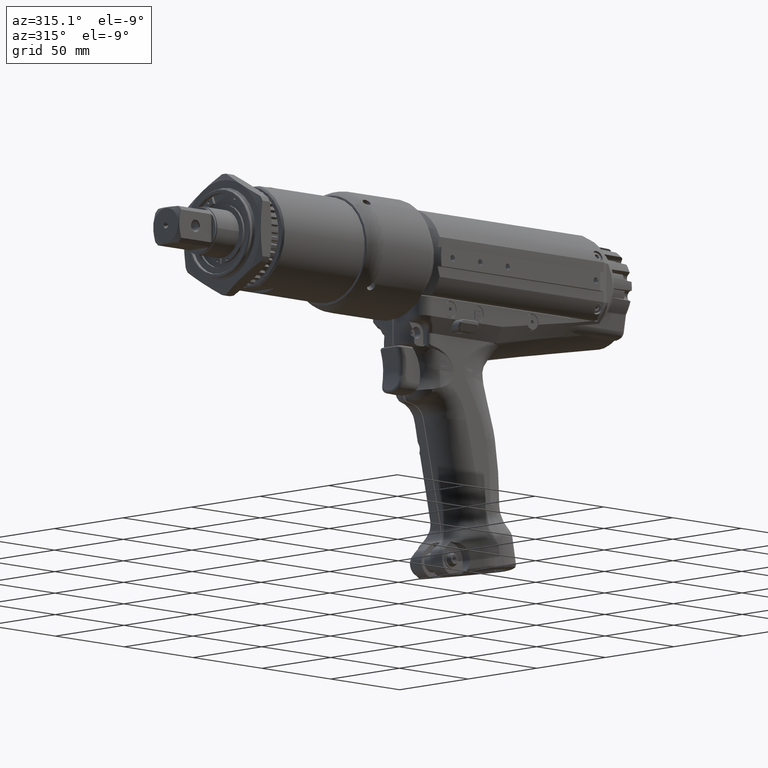
[diagram: clean part render]
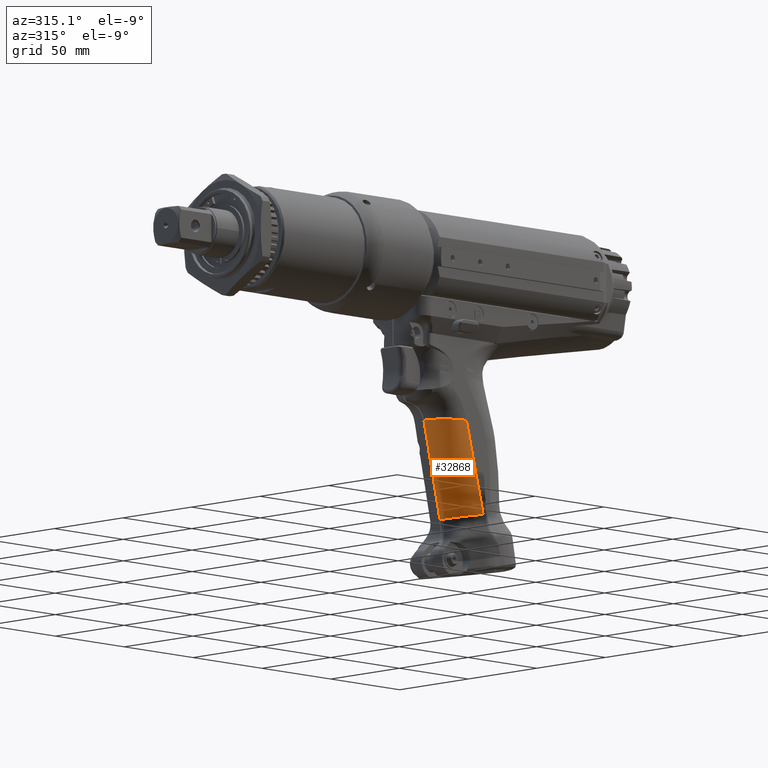
[diagram: same view with one face highlighted and labeled with its STEP entity id]
A machine part, auxiliary view. The second image highlights one B-rep face of the part: STEP entity #32868.
In plain terms, the highlighted face is a freeform B-spline surface patch.
Its self-contained STEP definition (entity closure, byte-faithful):
#2025=LINE('',#57216,#4008);
#4008=VECTOR('',#39238,10.);
#6563=FACE_OUTER_BOUND('',#8385,.T.);
#8385=EDGE_LOOP('',(#22858,#22859,#22860,#22861,#22862));
#11582=B_SPLINE_CURVE_WITH_KNOTS('',3,(#55046,#55047,#55048,#55049,#55050,
#55051,#55052,#55053,#55054,#55055),.UNSPECIFIED.,.F.,.F.,(4,3,3,4),(-6.48301901123684,
-4.86226425828379,-3.24150950533072,0.),.UNSPECIFIED.);
#11661=B_SPLINE_CURVE_WITH_KNOTS('',3,(#59744,#59745,#59746,#59747,#59748,
#59749,#59750,#59751,#59752,#59753,#59754,#59755,#59756,#59757,#59758,#59759,
#59760,#59761,#59762,#59763,#59764,#59765,#59766,#59767,#59768,#59769,#59770,
#59771,#59772,#59773,#59774),.UNSPECIFIED.,.F.,.F.,(4,3,3,3,3,3,3,3,3,3,
4),(-19.4136932267682,-16.9869815734223,-14.5602699200763,-13.3469140934034,
-12.1335582667304,-9.7068466133845,-7.28013496003857,-6.06677913336561,
-4.85342330669265,-2.42671165334672,-0.310536262625408),.UNSPECIFIED.);
#11672=B_SPLINE_CURVE_WITH_KNOTS('',3,(#61028,#61029,#61030,#61031,#61032,
#61033,#61034,#61035,#61036,#61037,#61038,#61039,#61040,#61041,#61042,#61043,
#61044,#61045,#61046,#61047,#61048,#61049,#61050,#61051,#61052,#61053,#61054,
#61055),.UNSPECIFIED.,.F.,.F.,(4,3,3,3,3,3,3,3,3,4),(-23.9684616606429,
-21.2322941278046,-19.715701690104,-18.1991092524035,-15.1659243770024,
-12.1327395016012,-9.09955462620011,-6.06636975079899,-3.03318487539785,
0.),.UNSPECIFIED.);
#11676=B_SPLINE_CURVE_WITH_KNOTS('',3,(#61575,#61576,#61577,#61578,#61579,
#61580,#61581),.UNSPECIFIED.,.F.,.F.,(4,3,4),(-51.8323816279323,-8.32192835508896,
-0.015886336177395),.UNSPECIFIED.);
#13297=VERTEX_POINT('',#54851);
#13305=VERTEX_POINT('',#55045);
#13348=VERTEX_POINT('',#57154);
#13376=VERTEX_POINT('',#59743);
#13388=VERTEX_POINT('',#61021);
#16883=EDGE_CURVE('',#13297,#13305,#11582,.T.);
#16947=EDGE_CURVE('',#13348,#13297,#2025,.T.);
#16994=EDGE_CURVE('',#13305,#13376,#11661,.T.);
#17015=EDGE_CURVE('',#13388,#13348,#11672,.T.);
#17019=EDGE_CURVE('',#13388,#13376,#11676,.T.);
#22858=ORIENTED_EDGE('',*,*,#17019,.T.);
#22859=ORIENTED_EDGE('',*,*,#16994,.F.);
#22860=ORIENTED_EDGE('',*,*,#16883,.F.);
#22861=ORIENTED_EDGE('',*,*,#16947,.F.);
#22862=ORIENTED_EDGE('',*,*,#17015,.F.);
#30535=B_SPLINE_SURFACE_WITH_KNOTS('',3,3,((#61535,#61536,#61537,#61538,
#61539,#61540,#61541,#61542,#61543,#61544),(#61545,#61546,#61547,#61548,
#61549,#61550,#61551,#61552,#61553,#61554),(#61555,#61556,#61557,#61558,
#61559,#61560,#61561,#61562,#61563,#61564),(#61565,#61566,#61567,#61568,
#61569,#61570,#61571,#61572,#61573,#61574)),.UNSPECIFIED.,.F.,.F.,.F.,(4,
4),(4,1,1,1,1,1,1,4),(6.18932721384576,59.3048513845876),(0.,1.,2.,3.,4.,
5.,6.,6.98580711094933),.UNSPECIFIED.);
#32868=ADVANCED_FACE('',(#6563),#30535,.F.);
#39238=DIRECTION('',(0.238202072095024,-0.0105560679108481,-0.971158247805114));
#54851=CARTESIAN_POINT('',(45.5678392086194,-15.9825582871778,-128.395362420582));
#55045=CARTESIAN_POINT('',(39.4207447537838,-14.7580043873872,-129.479388351292));
#55046=CARTESIAN_POINT('Ctrl Pts',(45.5678392086194,-15.982558287175,-128.395362420582));
#55047=CARTESIAN_POINT('Ctrl Pts',(45.0423176531497,-15.9836179425201,-128.48802604962));
#55048=CARTESIAN_POINT('Ctrl Pts',(44.5167569967792,-15.9593946880317,-128.580704521699));
#55049=CARTESIAN_POINT('Ctrl Pts',(43.9935237577396,-15.9097596218973,-128.672976584782));
#55050=CARTESIAN_POINT('Ctrl Pts',(43.4702905187,-15.860124555763,-128.765248647864));
#55051=CARTESIAN_POINT('Ctrl Pts',(42.9493825694194,-15.7849338151476,-128.857114679171));
#55052=CARTESIAN_POINT('Ctrl Pts',(42.4334432201096,-15.683524476737,-128.948104616164));
#55053=CARTESIAN_POINT('Ctrl Pts',(41.4015645216732,-15.4807057999517,-129.130084490118));
#55054=CARTESIAN_POINT('Ctrl Pts',(40.3902653576892,-15.1700841761263,-129.308435671873));
#55055=CARTESIAN_POINT('Ctrl Pts',(39.4207447539561,-14.7580043874603,-129.479388351262));
#57154=CARTESIAN_POINT('',(33.865236035306,-15.4639503978983,-80.6834366065204));
#57216=CARTESIAN_POINT('',(33.865236035306,-15.4639503978983,-80.6834366065204));
#59743=CARTESIAN_POINT('',(29.8188833644006,-0.299999986565734,-131.172330684969));
#59744=CARTESIAN_POINT('Ctrl Pts',(39.4207447534393,-14.7580043872409,-129.479388351351));
#59745=CARTESIAN_POINT('Ctrl Pts',(38.710704199284,-14.4564132780039,-129.604583011414));
#59746=CARTESIAN_POINT('Ctrl Pts',(38.0227957010012,-14.1010899634868,-129.725874959367));
#59747=CARTESIAN_POINT('Ctrl Pts',(37.3641988421852,-13.6966438285991,-129.841998297377));
#59748=CARTESIAN_POINT('Ctrl Pts',(36.7056019833691,-13.2921976937114,-129.958121635387));
#59749=CARTESIAN_POINT('Ctrl Pts',(36.0761901649655,-12.8387343871393,-130.069098686406));
#59750=CARTESIAN_POINT('Ctrl Pts',(35.4835481221014,-12.3399946881339,-130.173592109945));
#59751=CARTESIAN_POINT('Ctrl Pts',(35.1872271006694,-12.0906248386312,-130.225838821715));
#59752=CARTESIAN_POINT('Ctrl Pts',(34.9000542562522,-11.8301928924038,-130.276472433429));
#59753=CARTESIAN_POINT('Ctrl Pts',(34.622739186844,-11.5592106494205,-130.325367829726));
#59754=CARTESIAN_POINT('Ctrl Pts',(34.3454241174359,-11.2882284064371,-130.374263226023));
#59755=CARTESIAN_POINT('Ctrl Pts',(34.0779421395391,-11.0069441553659,-130.421424760657));
#59756=CARTESIAN_POINT('Ctrl Pts',(33.8210327100878,-10.7159982363613,-130.466722054396));
#59757=CARTESIAN_POINT('Ctrl Pts',(33.3072138511854,-10.134106398352,-130.557316641874));
#59758=CARTESIAN_POINT('Ctrl Pts',(32.8360190317774,-9.51346485173856,-130.640395400639));
#59759=CARTESIAN_POINT('Ctrl Pts',(32.4123072959021,-8.86098497463115,-130.715101611402));
#59760=CARTESIAN_POINT('Ctrl Pts',(31.9885955600267,-8.20850509752373,-130.789807822164));
#59761=CARTESIAN_POINT('Ctrl Pts',(31.6122182445918,-7.52440136805803,-130.856167698885));
#59762=CARTESIAN_POINT('Ctrl Pts',(31.2870864031662,-6.81598706661476,-130.913491676911));
#59763=CARTESIAN_POINT('Ctrl Pts',(31.1245204824535,-6.46177991589313,-130.942153665924));
#59764=CARTESIAN_POINT('Ctrl Pts',(30.9747907929411,-6.10157030157646,-130.968552296869));
#59765=CARTESIAN_POINT('Ctrl Pts',(30.838267466811,-5.73618978403979,-130.992622311816));
#59766=CARTESIAN_POINT('Ctrl Pts',(30.7017441406808,-5.37080926650313,-131.016692326763));
#59767=CARTESIAN_POINT('Ctrl Pts',(30.5785405804144,-5.00032794004964,-131.038413730641));
#59768=CARTESIAN_POINT('Ctrl Pts',(30.4689447140225,-4.62576113898585,-131.057735761122));
#59769=CARTESIAN_POINT('Ctrl Pts',(30.2497529812386,-3.87662753685827,-131.096379822086));
#59770=CARTESIAN_POINT('Ctrl Pts',(30.0859888018645,-3.1106772334414,-131.125250631912));
#59771=CARTESIAN_POINT('Ctrl Pts',(29.977917964721,-2.33692256675389,-131.144301380163));
#59772=CARTESIAN_POINT('Ctrl Pts',(29.8836765060367,-1.66218208745458,-131.160914282882));
#59773=CARTESIAN_POINT('Ctrl Pts',(29.8309282685647,-0.981404978026323,
-131.170210941981));
#59774=CARTESIAN_POINT('Ctrl Pts',(29.8188837248644,-0.299999973222157,
-131.17233060175));
#61021=CARTESIAN_POINT('',(18.1620621875455,-0.299999864935957,-80.6834273257871));
#61028=CARTESIAN_POINT('Ctrl Pts',(18.1620621875455,-0.299999864935957,
-80.6834273257871));
#61029=CARTESIAN_POINT('Ctrl Pts',(18.1771387497501,-1.22119265919357,-80.6834276602242));
#61030=CARTESIAN_POINT('Ctrl Pts',(18.267942099335,-2.14163923726862,-80.6834278991347));
#61031=CARTESIAN_POINT('Ctrl Pts',(18.4433397213859,-3.04619781146871,-80.6834280686937));
#61032=CARTESIAN_POINT('Ctrl Pts',(18.5405584420967,-3.54757306595322,-80.6834281626761));
#61033=CARTESIAN_POINT('Ctrl Pts',(18.6643881962567,-4.04377836317924,-80.6834282348271));
#61034=CARTESIAN_POINT('Ctrl Pts',(18.8138406663392,-4.53205493434958,-80.6834282918092));
#61035=CARTESIAN_POINT('Ctrl Pts',(18.9632931364217,-5.02033150551992,-80.6834283487912));
#61036=CARTESIAN_POINT('Ctrl Pts',(19.1381723039592,-5.50096762260655,-80.6834283911003));
#61037=CARTESIAN_POINT('Ctrl Pts',(19.3368979536065,-5.97137758340933,-80.6834284257208));
#61038=CARTESIAN_POINT('Ctrl Pts',(19.734349252901,-6.91219750501487,-80.6834284949619));
#61039=CARTESIAN_POINT('Ctrl Pts',(20.2267468032353,-7.8129690442831,-80.6834285346032));
#61040=CARTESIAN_POINT('Ctrl Pts',(20.8038890792877,-8.655663067312,-80.6834285958998));
#61041=CARTESIAN_POINT('Ctrl Pts',(21.3810313553401,-9.49835709034094,-80.6834286571963));
#61042=CARTESIAN_POINT('Ctrl Pts',(22.0438219487164,-10.2821579216293,-80.6834287396974));
#61043=CARTESIAN_POINT('Ctrl Pts',(22.7761809125763,-10.9940374471896,-80.6834288940531));
#61044=CARTESIAN_POINT('Ctrl Pts',(23.5085398764362,-11.70591697275,-80.6834290484089));
#61045=CARTESIAN_POINT('Ctrl Pts',(24.3111947217538,-12.3455356181498,-80.6834292744781));
#61046=CARTESIAN_POINT('Ctrl Pts',(25.1686340526164,-12.9005609593443,-80.6834296151551));
#61047=CARTESIAN_POINT('Ctrl Pts',(26.026073383479,-13.4555863005388,-80.6834299558322));
#61048=CARTESIAN_POINT('Ctrl Pts',(26.9367790350865,-13.9281019868943,-80.6834304122798));
#61049=CARTESIAN_POINT('Ctrl Pts',(27.8843950872285,-14.3093168097327,-80.6834310181496));
#61050=CARTESIAN_POINT('Ctrl Pts',(28.8320111393706,-14.690531632571,-80.6834316240194));
#61051=CARTESIAN_POINT('Ctrl Pts',(29.8166895116927,-14.9791245019431,-80.6834323795945));
#61052=CARTESIAN_POINT('Ctrl Pts',(30.8196845161613,-15.1719144158077,-80.6834333064904));
#61053=CARTESIAN_POINT('Ctrl Pts',(31.8226795206289,-15.364704329672,-80.6834342333863));
#61054=CARTESIAN_POINT('Ctrl Pts',(32.843856271045,-15.4637990304035,-80.6834353315417));
#61055=CARTESIAN_POINT('Ctrl Pts',(33.8652360353059,-15.4639503978983,-80.68343660652));
#61535=CARTESIAN_POINT('Ctrl Pts',(33.1320648046684,-15.4314594744025,-77.6942716449367));
#61536=CARTESIAN_POINT('Ctrl Pts',(31.9981187510583,-15.433561842498,-77.8876895097135));
#61537=CARTESIAN_POINT('Ctrl Pts',(29.7113447631244,-15.1679206120768,-78.2760355364439));
#61538=CARTESIAN_POINT('Ctrl Pts',(26.5203420210999,-14.0297554434305,-78.813549850569));
#61539=CARTESIAN_POINT('Ctrl Pts',(23.6053456448684,-12.1715831929764,-79.2996621685887));
#61540=CARTESIAN_POINT('Ctrl Pts',(21.1662113574868,-9.67013863266244,-79.7007310331562));
#61541=CARTESIAN_POINT('Ctrl Pts',(19.3769327855555,-6.72762038053961,-79.9885858677607));
#61542=CARTESIAN_POINT('Ctrl Pts',(18.272364011691,-3.47426618170769,-80.1578291050224));
#61543=CARTESIAN_POINT('Ctrl Pts',(18.0458448817121,-1.18087065599427,-80.1829956592747));
#61544=CARTESIAN_POINT('Ctrl Pts',(18.0428603286647,-0.0488880631525478,
-80.1768412995747));
#61545=CARTESIAN_POINT('Ctrl Pts',(37.4112318994405,-15.6210933346678,-95.140586789332));
#61546=CARTESIAN_POINT('Ctrl Pts',(36.2568205418976,-15.6230302236222,-95.3187805731416));
#61547=CARTESIAN_POINT('Ctrl Pts',(33.9274850111025,-15.3627156754217,-95.6716050561516));
#61548=CARTESIAN_POINT('Ctrl Pts',(30.671714144472,-14.2152537135964,-96.1481023922061));
#61549=CARTESIAN_POINT('Ctrl Pts',(27.6953767170024,-12.3369560272959,-96.5650954123668));
#61550=CARTESIAN_POINT('Ctrl Pts',(25.2009339980697,-9.80693994291994,-96.8930978409874));
#61551=CARTESIAN_POINT('Ctrl Pts',(23.3626824393949,-6.82478284514916,-97.1106655846703));
#61552=CARTESIAN_POINT('Ctrl Pts',(22.2205637231422,-3.52527511484597,-97.2139046381531));
#61553=CARTESIAN_POINT('Ctrl Pts',(21.9765346741242,-1.19849471066294,-97.2002597254631));
#61554=CARTESIAN_POINT('Ctrl Pts',(21.9675683409105,-0.0496179493162851,
-97.176276740064));
#61555=CARTESIAN_POINT('Ctrl Pts',(41.6904333988425,-15.8107287195955,-112.587042202641));
#61556=CARTESIAN_POINT('Ctrl Pts',(40.5142640781664,-15.812501568073,-112.750144262572));
#61557=CARTESIAN_POINT('Ctrl Pts',(38.1414878004364,-15.5557196069803,-113.067561297025));
#61558=CARTESIAN_POINT('Ctrl Pts',(34.8138872761112,-14.394150968327,-113.483472554788));
#61559=CARTESIAN_POINT('Ctrl Pts',(31.7807600311191,-12.4940308752059,-113.830833089394));
#61560=CARTESIAN_POINT('Ctrl Pts',(29.2410440081699,-9.94515068078324,-114.085537223452));
#61561=CARTESIAN_POINT('Ctrl Pts',(27.3501264502829,-6.92139778519232,-114.232966606496));
#61562=CARTESIAN_POINT('Ctrl Pts',(26.1709743814615,-3.57393511686102,-114.26989869948));
#61563=CARTESIAN_POINT('Ctrl Pts',(25.9057143993673,-1.21573223276545,-114.217843945491));
#61564=CARTESIAN_POINT('Ctrl Pts',(25.8922420843666,-0.0503321952918275,
-114.175856672276));
#61565=CARTESIAN_POINT('Ctrl Pts',(45.9696258000896,-16.0003637013329,-130.033460522445));
#61566=CARTESIAN_POINT('Ctrl Pts',(44.7713457230794,-16.0019712146189,-130.181351744753));
#61567=CARTESIAN_POINT('Ctrl Pts',(42.3544901735796,-15.7502254994935,-130.463600680171));
#61568=CARTESIAN_POINT('Ctrl Pts',(38.9550081777189,-14.5760126653354,-130.818662812572));
#61569=CARTESIAN_POINT('Ctrl Pts',(35.8641413315392,-12.6546750740438,-131.096649539636));
#61570=CARTESIAN_POINT('Ctrl Pts',(33.2781168838093,-10.085698691626,-131.278740149826));
#61571=CARTESIAN_POINT('Ctrl Pts',(31.3353494119693,-7.02017381899586,-131.35572721669));
#61572=CARTESIAN_POINT('Ctrl Pts',(30.1198896795799,-3.62412924527981,-131.326162407783));
#61573=CARTESIAN_POINT('Ctrl Pts',(29.8346115852599,-1.23349146811636,-131.23540769398));
#61574=CARTESIAN_POINT('Ctrl Pts',(29.8168963348017,-0.0510680400676904,
-131.175401034218));
#61575=CARTESIAN_POINT('Ctrl Pts',(18.1620474858554,-0.299999476740938,
-80.6834307179721));
#61576=CARTESIAN_POINT('Ctrl Pts',(21.4250446751728,-0.299999951577952,
-94.8153996611397));
#61577=CARTESIAN_POINT('Ctrl Pts',(24.6877849856636,-0.299998595020595,
-108.947344671283));
#61578=CARTESIAN_POINT('Ctrl Pts',(27.9504116954874,-0.29999963439409,-123.079157732605));
#61579=CARTESIAN_POINT('Ctrl Pts',(28.5732393726409,-0.299999832808017,
-125.776887226588));
#61580=CARTESIAN_POINT('Ctrl Pts',(29.196062841352,-0.299999997105952,-128.474611851116));
#61581=CARTESIAN_POINT('Ctrl Pts',(29.8188830042706,-0.299999986476897,
-131.172330768112));